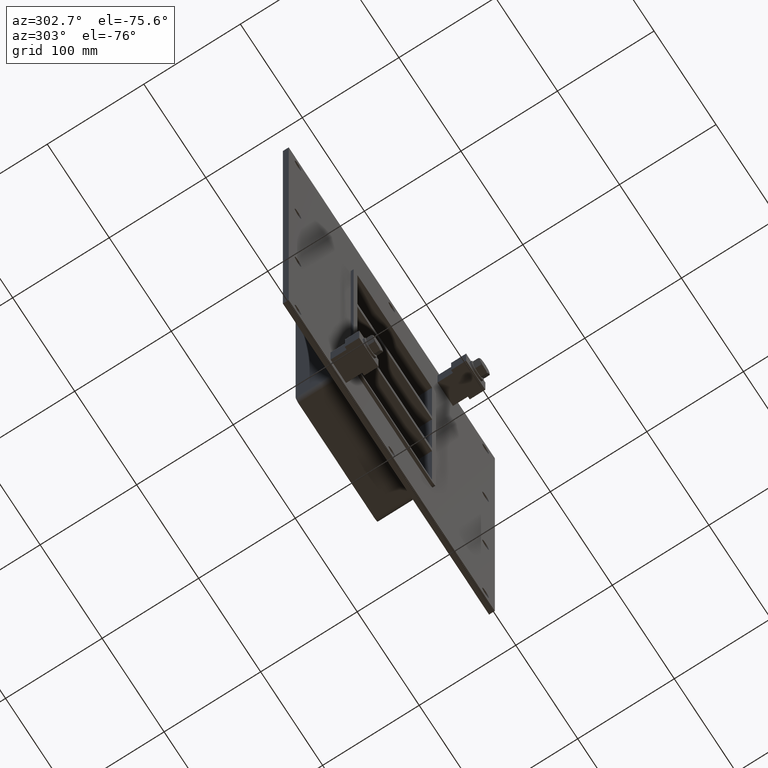
[diagram: clean part render]
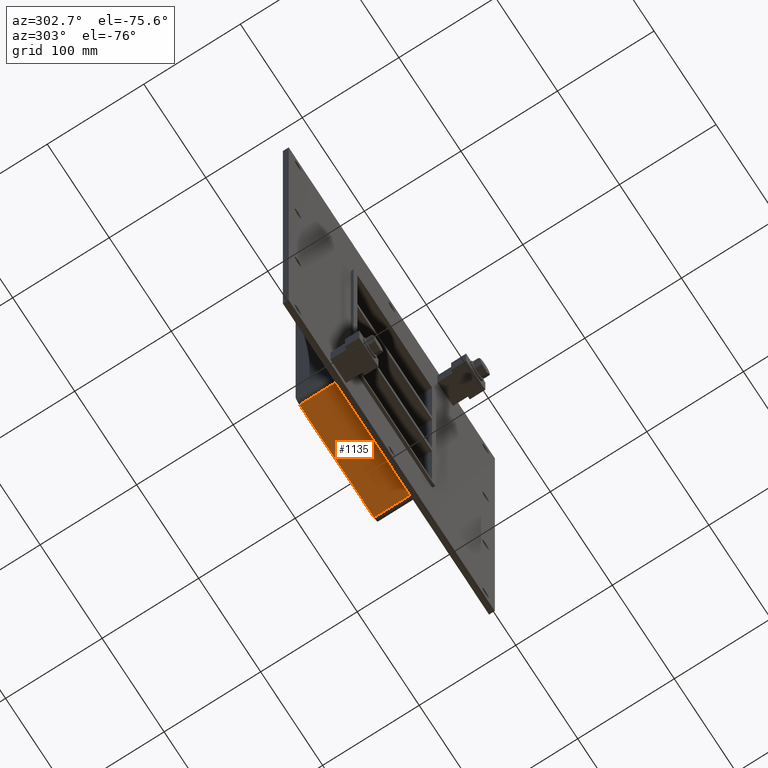
[diagram: same view with one face highlighted and labeled with its STEP entity id]
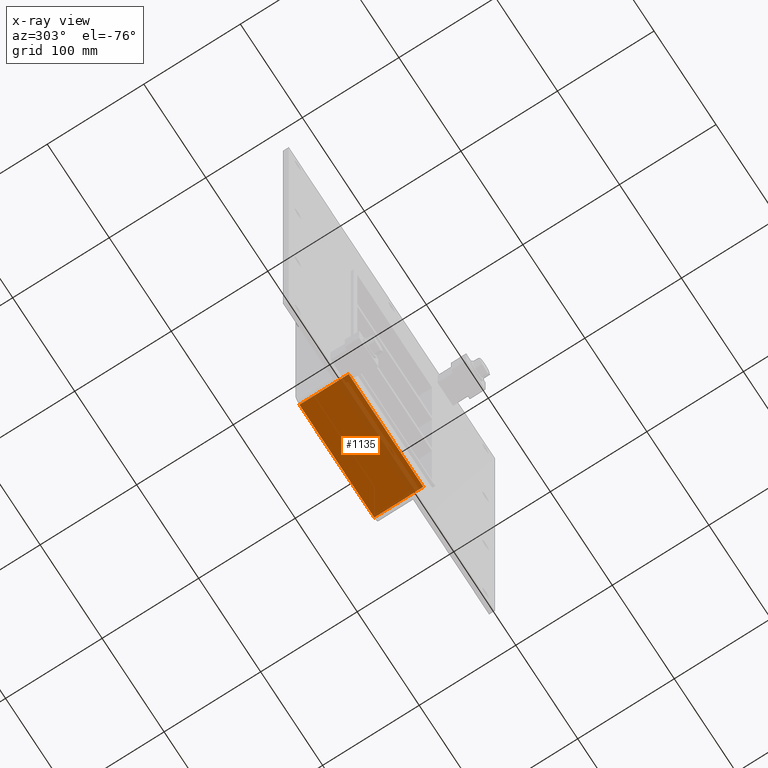
[diagram: x-ray of the same camera — body ghosted, the highlighted face saturated]
A machine part, auxiliary view. The second image highlights one B-rep face of the part: STEP entity #1135.
The next image is the same camera in x-ray: the body ghosted, the highlighted face saturated — about 19% of this face is hidden behind the body in this view.
In plain terms, the highlighted planar face has unit normal (0, 0, -1).
Its self-contained STEP definition (entity closure, byte-faithful):
#733=CARTESIAN_POINT('',(-60.25,6.000000000000001,-167.5));
#734=VERTEX_POINT('',#733);
#742=CARTESIAN_POINT('',(60.249999999999986,6.000000000000001,-167.5));
#743=VERTEX_POINT('',#742);
#744=CARTESIAN_POINT('',(60.249999999999986,6.000000000000001,-167.5));
#745=DIRECTION('',(-1.0,0.0,0.0));
#746=VECTOR('',#745,120.49999999999999);
#747=LINE('',#744,#746);
#748=EDGE_CURVE('',#743,#734,#747,.T.);
#1062=CARTESIAN_POINT('',(60.249999999999986,57.0,-167.5));
#1063=VERTEX_POINT('',#1062);
#1064=CARTESIAN_POINT('',(60.249999999999986,6.000000000000001,-167.5));
#1065=DIRECTION('',(0.0,1.0,0.0));
#1066=VECTOR('',#1065,51.0);
#1067=LINE('',#1064,#1066);
#1068=EDGE_CURVE('',#743,#1063,#1067,.T.);
#1112=CARTESIAN_POINT('',(66.249999999999986,0.0,-167.5));
#1113=DIRECTION('',(0.0,0.0,-1.0));
#1114=DIRECTION('',(-1.0,0.0,0.0));
#1115=AXIS2_PLACEMENT_3D('',#1112,#1113,#1114);
#1116=PLANE('',#1115);
#1117=ORIENTED_EDGE('',*,*,#748,.T.);
#1118=CARTESIAN_POINT('',(-60.249999999999993,57.0,-167.5));
#1119=VERTEX_POINT('',#1118);
#1120=CARTESIAN_POINT('',(-60.25,57.0,-167.5));
#1121=DIRECTION('',(0.0,-1.0,0.0));
#1122=VECTOR('',#1121,51.0);
#1123=LINE('',#1120,#1122);
#1124=EDGE_CURVE('',#1119,#734,#1123,.T.);
#1125=ORIENTED_EDGE('',*,*,#1124,.F.);
#1126=CARTESIAN_POINT('',(60.249999999999979,57.0,-167.5));
#1127=DIRECTION('',(-1.0,0.0,0.0));
#1128=VECTOR('',#1127,120.49999999999997);
#1129=LINE('',#1126,#1128);
#1130=EDGE_CURVE('',#1063,#1119,#1129,.T.);
#1131=ORIENTED_EDGE('',*,*,#1130,.F.);
#1132=ORIENTED_EDGE('',*,*,#1068,.F.);
#1133=EDGE_LOOP('',(#1117,#1125,#1131,#1132));
#1134=FACE_OUTER_BOUND('',#1133,.T.);
#1135=ADVANCED_FACE('',(#1134),#1116,.T.);